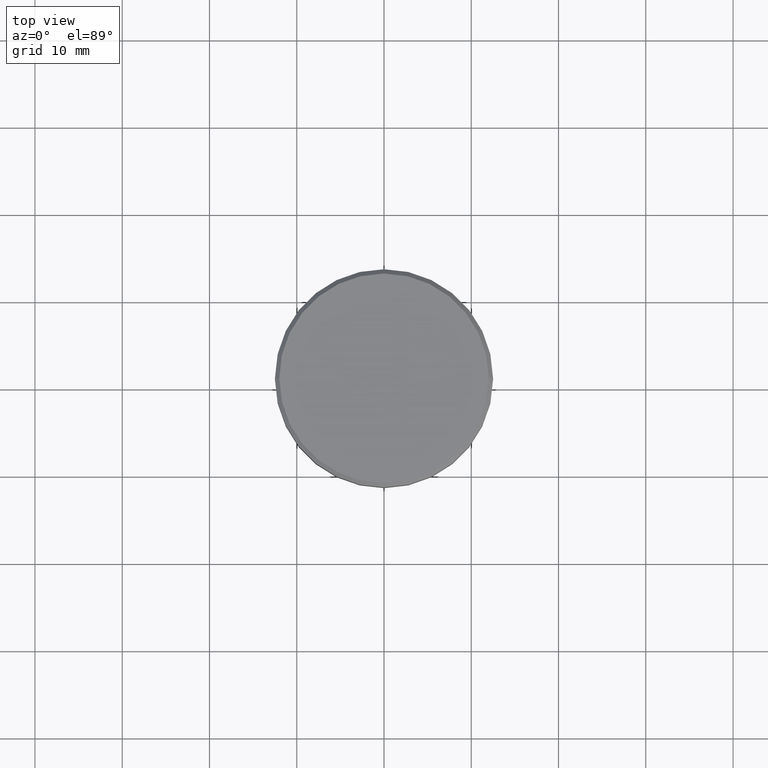
[diagram: clean part render]
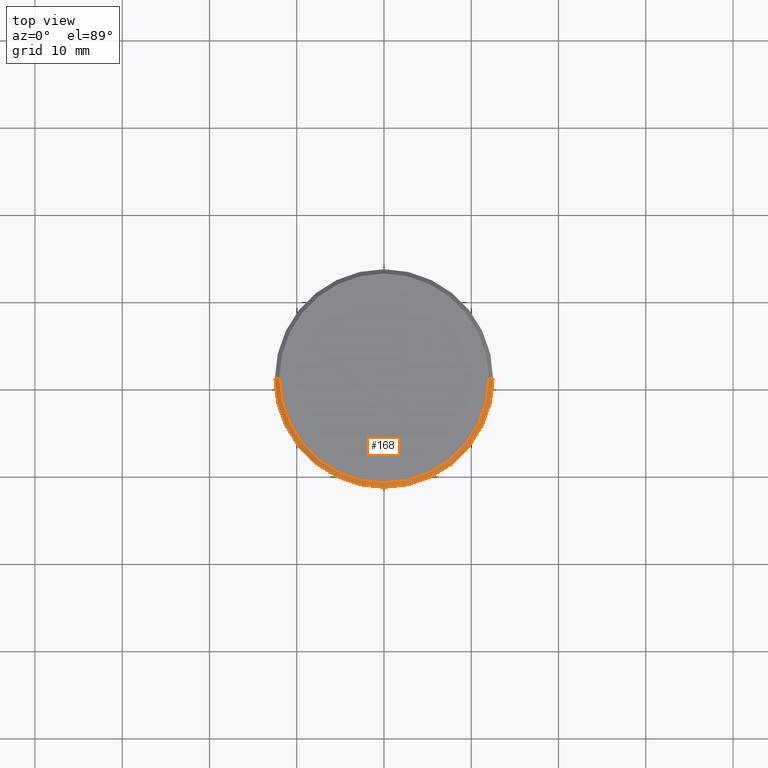
[diagram: same view with one face highlighted and labeled with its STEP entity id]
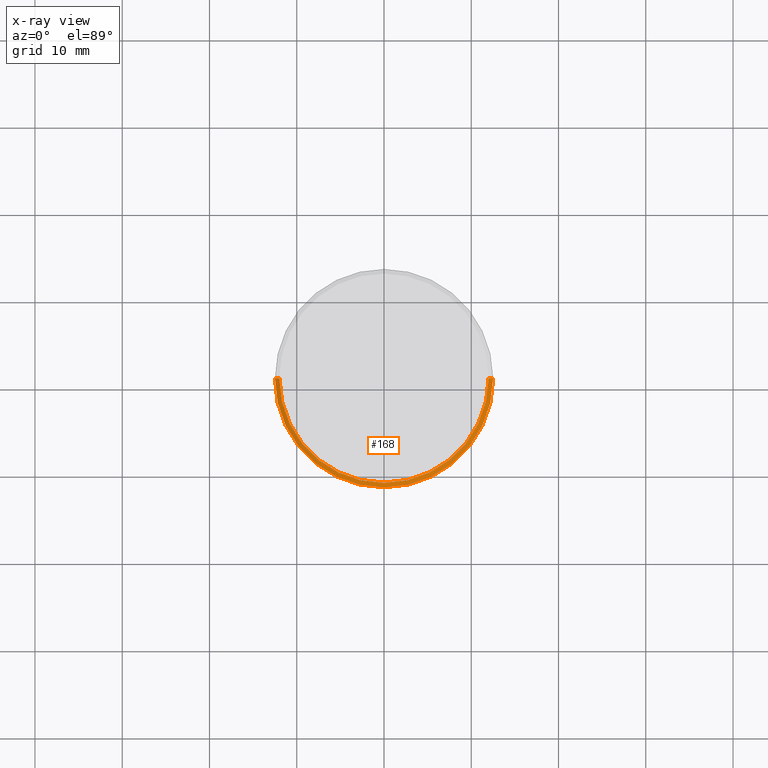
[diagram: x-ray of the same camera — body ghosted, the highlighted face saturated]
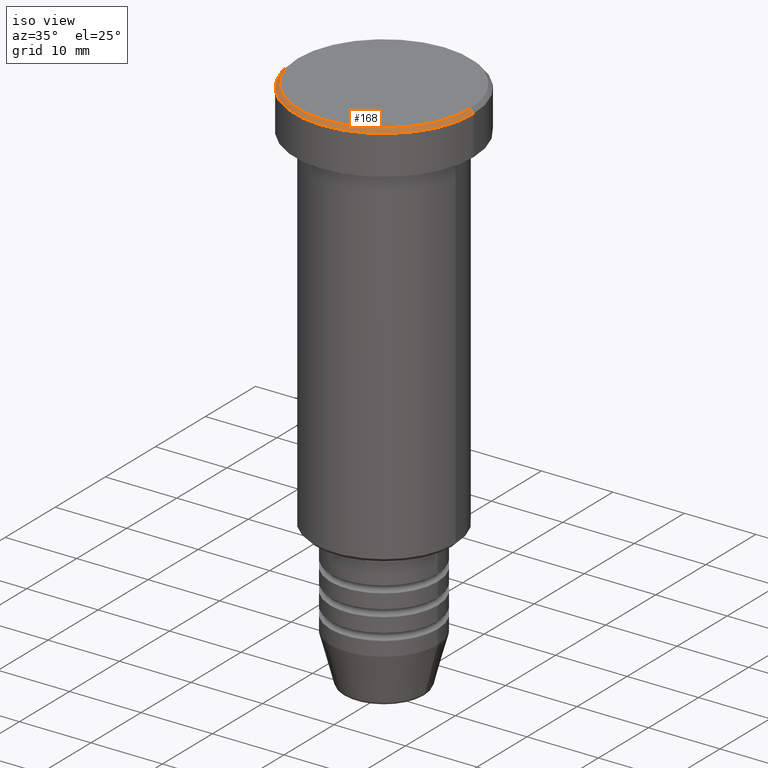
[diagram: same view with one face highlighted and labeled with its STEP entity id]
A machine part, top view. The second image highlights one B-rep face of the part: STEP entity #168.
The next image is the same camera in x-ray: the body ghosted, the highlighted face saturated — about 0% of this face is hidden behind the body in this view.
A second angle (iso view) of the same face is appended — the face is thin or edge-on in the first view.
In plain terms, the highlighted conical surface has half-angle 45 deg.
Its self-contained STEP definition (entity closure, byte-faithful):
#59 = CARTESIAN_POINT ( 'NONE',  ( 11.99999999999999645, 1.500192328955507537E-15, 0.000000000000000000 ) ) ;
#131 = CARTESIAN_POINT ( 'NONE',  ( 0.000000000000000000, 0.000000000000000000, 0.000000000000000000 ) ) ;
#135 = DIRECTION ( 'NONE',  ( 0.000000000000000000, 0.000000000000000000, -1.000000000000000000 ) ) ;
#162 = EDGE_CURVE ( 'NONE', #1051, #870, #975, .T. ) ;
#168 = ADVANCED_FACE ( 'NONE', ( #588 ), #898, .T. ) ;
#174 = ORIENTED_EDGE ( 'NONE', *, *, #620, .T. ) ;
#193 = CARTESIAN_POINT ( 'NONE',  ( 11.99999999999999645, 1.469576158976823553E-15, 0.000000000000000000 ) ) ;
#203 = CIRCLE ( 'NONE', #464, 11.99999999999999645 ) ;
#230 = VERTEX_POINT ( 'NONE', #59 ) ;
#231 = DIRECTION ( 'NONE',  ( 0.000000000000000000, 0.000000000000000000, -1.000000000000000000 ) ) ;
#248 = ORIENTED_EDGE ( 'NONE', *, *, #493, .F. ) ;
#335 = ORIENTED_EDGE ( 'NONE', *, *, #162, .F. ) ;
#357 = CARTESIAN_POINT ( 'NONE',  ( -11.99999999999999645, 0.000000000000000000, 0.000000000000000000 ) ) ;
#367 = DIRECTION ( 'NONE',  ( -0.7071067811865512365, 0.000000000000000000, -0.7071067811865439090 ) ) ;
#396 = LINE ( 'NONE', #193, #485 ) ;
#410 = CARTESIAN_POINT ( 'NONE',  ( 0.000000000000000000, 0.000000000000000000, -0.4999999999999987232 ) ) ;
#423 = CARTESIAN_POINT ( 'NONE',  ( 12.50000000000000000, 0.000000000000000000, -0.4999999999999987232 ) ) ;
#464 = AXIS2_PLACEMENT_3D ( 'NONE', #741, #1028, #734 ) ;
#467 = ORIENTED_EDGE ( 'NONE', *, *, #497, .F. ) ;
#485 = VECTOR ( 'NONE', #821, 1000.000000000000000 ) ;
#493 = EDGE_CURVE ( 'NONE', #1162, #230, #203, .T. ) ;
#497 = EDGE_CURVE ( 'NONE', #230, #1051, #396, .T. ) ;
#570 = CARTESIAN_POINT ( 'NONE',  ( -12.50000000000000000, 1.530808498934191521E-15, -0.4999999999999987232 ) ) ;
#588 = FACE_OUTER_BOUND ( 'NONE', #746, .T. ) ;
#594 = DIRECTION ( 'NONE',  ( -1.000000000000000000, 0.000000000000000000, 0.000000000000000000 ) ) ;
#620 = EDGE_CURVE ( 'NONE', #1162, #870, #948, .T. ) ;
#691 = DIRECTION ( 'NONE',  ( 1.000000000000000000, 0.000000000000000000, 0.000000000000000000 ) ) ;
#727 = AXIS2_PLACEMENT_3D ( 'NONE', #131, #135, #594 ) ;
#734 = DIRECTION ( 'NONE',  ( 1.000000000000000000, 0.000000000000000000, 0.000000000000000000 ) ) ;
#741 = CARTESIAN_POINT ( 'NONE',  ( 0.000000000000000000, 0.000000000000000000, 0.000000000000000000 ) ) ;
#746 = EDGE_LOOP ( 'NONE', ( #467, #248, #174, #335 ) ) ;
#820 = CARTESIAN_POINT ( 'NONE',  ( -11.99999999999999645, 0.000000000000000000, 0.000000000000000000 ) ) ;
#821 = DIRECTION ( 'NONE',  ( 0.7071067811865512365, 8.659560562354978464E-17, -0.7071067811865439090 ) ) ;
#864 = AXIS2_PLACEMENT_3D ( 'NONE', #410, #231, #691 ) ;
#870 = VERTEX_POINT ( 'NONE', #570 ) ;
#898 = CONICAL_SURFACE ( 'NONE', #727, 11.99999999999999645, 0.7853981633974533860 ) ;
#948 = LINE ( 'NONE', #820, #1150 ) ;
#975 = CIRCLE ( 'NONE', #864, 12.50000000000000000 ) ;
#1028 = DIRECTION ( 'NONE',  ( -0.000000000000000000, -0.000000000000000000, 1.000000000000000000 ) ) ;
#1051 = VERTEX_POINT ( 'NONE', #423 ) ;
#1150 = VECTOR ( 'NONE', #367, 1000.000000000000000 ) ;
#1162 = VERTEX_POINT ( 'NONE', #357 ) ;